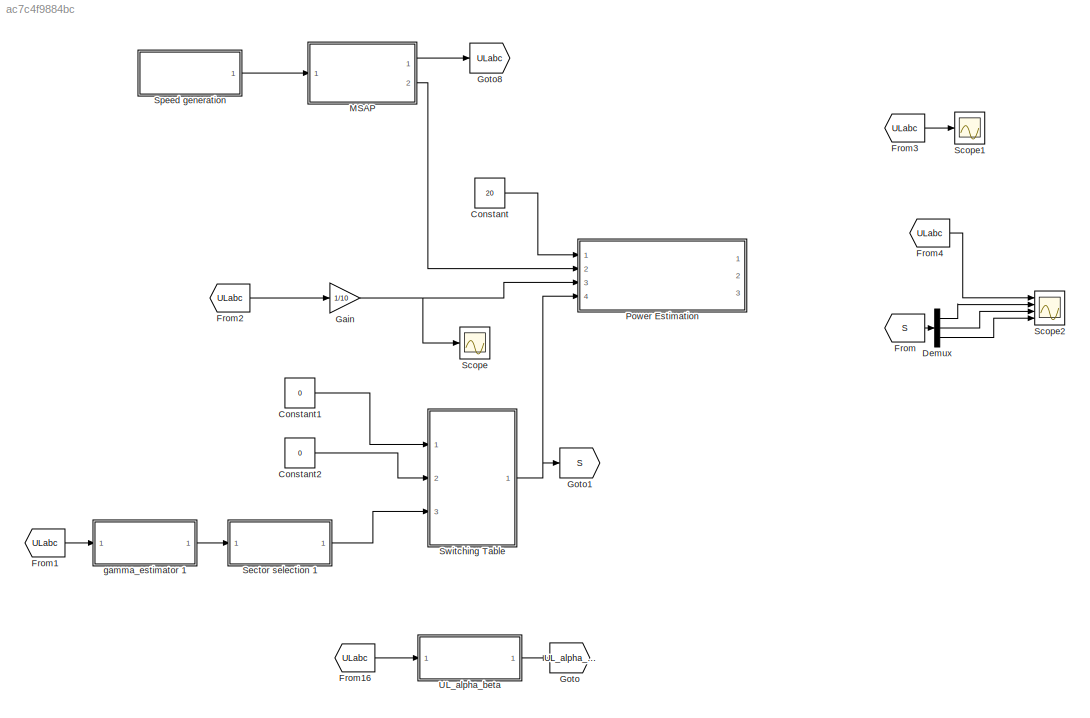
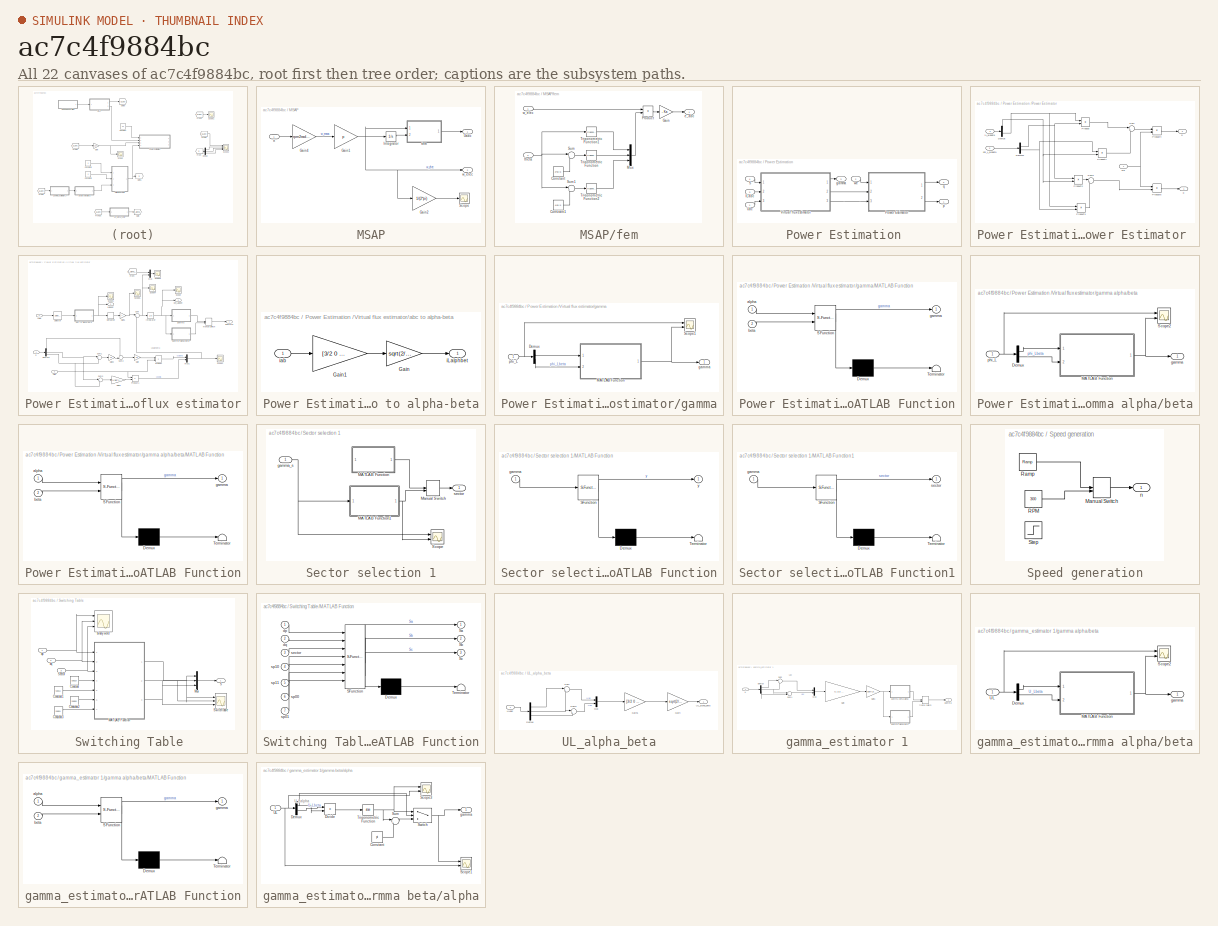
[diagram: thumbnail index - all 22 canvases of the model, root first then tree order]
MODEL slx_ac7c4f9884bc
KIND model
CONFIG AbsTol = auto
CONFIG FixedStep = Ts
CONFIG MaxStep = auto
CONFIG MinStep = auto
CONFIG RelTol = 1e-3
CONFIG SampleTimeConstraint = Unconstrained
CONFIG Solver = ode3
CONFIG SolverMode = Auto
CONFIG SolverName = ode3
CONFIG StartTime = 0.0
CONFIG StopTime = 3
BLOCK [Constant] Constant
  Value = 20
BLOCK [Constant] Constant1
  Value = 0
BLOCK [Constant] Constant2
  Value = 0
BLOCK [Demux] Demux
  DisplayOption = bar
  Outputs = 3
  Ports = [1, 3]
BLOCK [From] From
  GotoTag = S
  TagVisibility = global
BLOCK [From] From1
  GotoTag = ULabc
  TagVisibility = global
BLOCK [From] From16
  GotoTag = ULabc
  TagVisibility = global
BLOCK [From] From2
  GotoTag = ULabc
  TagVisibility = global
BLOCK [From] From3
  GotoTag = ULabc
  TagVisibility = global
BLOCK [From] From4
  GotoTag = ULabc
  TagVisibility = global
BLOCK [Gain] Gain
  Gain = 1/10
  OutDataTypeStr = Inherit: Inherit via internal rule
  ParamDataTypeStr = Inherit: Inherit via internal rule
  SaturateOnIntegerOverflow = off
BLOCK [Goto] Goto
  GotoTag = UL_alpha_beta
  TagVisibility = global
BLOCK [Goto] Goto1
  GotoTag = S
  TagVisibility = global
BLOCK [Goto] Goto8
  GotoTag = ULabc
  TagVisibility = global
BLOCK [SubSystem] MSAP
  Ports = [1, 2]
  RequestExecContextInheritance = off
BLOCK [Gain] MSAP/Gain1
  Gain = p
  OutDataTypeStr = Inherit: Inherit via internal rule
  ParamDataTypeStr = Inherit: Inherit via internal rule
  SaturateOnIntegerOverflow = off
BLOCK [Gain] MSAP/Gain2
  Gain = 1/(2*pi)
  OutDataTypeStr = Inherit: Inherit via internal rule
  ParamDataTypeStr = Inherit: Inherit via internal rule
  SaturateOnIntegerOverflow = off
BLOCK [Gain] MSAP/Gain4
  Gain = rpm2radps
  OutDataTypeStr = Inherit: Inherit via internal rule
  ParamDataTypeStr = Inherit: Inherit via internal rule
  SaturateOnIntegerOverflow = off
BLOCK [Integrator] MSAP/Integrator
  Ports = [1, 1]
BLOCK [Scope] MSAP/Scope
  Floating = off
  NumInputPorts = 1
  Ports = [1]
  SaveName = ScopeData9
  YMax = 21
  YMin = 19
BLOCK [Outport] MSAP/Uabc
  IconDisplay = Port number
BLOCK [SubSystem] MSAP/fem
  Ports = [2, 1]
  RequestExecContextInheritance = off
BLOCK [Constant] MSAP/fem/Constant
  Value = 2*pi/3
BLOCK [Constant] MSAP/fem/Constant1
  Value = 4*pi/3
BLOCK [Gain] MSAP/fem/Gain
  Gain = - Ka
  OutDataTypeStr = Inherit: Inherit via internal rule
  ParamDataTypeStr = Inherit: Inherit via internal rule
  SaturateOnIntegerOverflow = off
BLOCK [Mux] MSAP/fem/Mux
  DisplayOption = bar
  Inputs = 3
  Ports = [3, 1]
BLOCK [Product] MSAP/fem/Product
  InputSameDT = off
  OutDataTypeStr = Inherit: Inherit via internal rule
  Ports = [2, 1]
  RndMeth = Floor
  SaturateOnIntegerOverflow = off
BLOCK [Sum] MSAP/fem/Sum
  IconShape = round
  InputSameDT = off
  Inputs = |+-
  OutDataTypeStr = Inherit: Inherit via internal rule
  Ports = [2, 1]
  SaturateOnIntegerOverflow = off
BLOCK [Sum] MSAP/fem/Sum1
  IconShape = round
  InputSameDT = off
  Inputs = |+-
  OutDataTypeStr = Inherit: Inherit via internal rule
  Ports = [2, 1]
  SaturateOnIntegerOverflow = off
BLOCK [Trigonometry] MSAP/fem/Trigonometric Function
  Ports = [1, 1]
BLOCK [Trigonometry] MSAP/fem/Trigonometric Function1
  Ports = [1, 1]
BLOCK [Trigonometry] MSAP/fem/Trigonometric Function2
  Ports = [1, 1]
BLOCK [Outport] MSAP/fem/e_abc
  IconDisplay = Port number
BLOCK [Inport] MSAP/fem/theta
  IconDisplay = Port number
  Port = 2
BLOCK [Inport] MSAP/fem/w_elec
  IconDisplay = Port number
BLOCK [Inport] MSAP/n
  IconDisplay = Port number
BLOCK [Outport] MSAP/w_elec
  IconDisplay = Port number
  Port = 2
BLOCK [SubSystem] Power Estimation 
  Ports = [4, 3]
  RequestExecContextInheritance = off
BLOCK [Inport] Power Estimation /ILabc
  IconDisplay = Port number
  Port = 3
BLOCK [SubSystem] Power Estimation /Power Estimator 
  Ports = [3, 2]
  RequestExecContextInheritance = off
BLOCK [Demux] Power Estimation /Power Estimator /Demux
  DisplayOption = bar
  Outputs = 2
  Ports = [1, 2]
BLOCK [Demux] Power Estimation /Power Estimator /Demux1
  DisplayOption = bar
  Outputs = 2
  Ports = [1, 2]
BLOCK [Product] Power Estimation /Power Estimator /Product
  InputSameDT = off
  OutDataTypeStr = Inherit: Inherit via internal rule
  Ports = [2, 1]
  RndMeth = Floor
  SaturateOnIntegerOverflow = off
BLOCK [Product] Power Estimation /Power Estimator /Product1
  InputSameDT = off
  OutDataTypeStr = Inherit: Inherit via internal rule
  Ports = [2, 1]
  RndMeth = Floor
  SaturateOnIntegerOverflow = off
BLOCK [Product] Power Estimation /Power Estimator /Product2
  InputSameDT = off
  OutDataTypeStr = Inherit: Inherit via internal rule
  Ports = [2, 1]
  RndMeth = Floor
  SaturateOnIntegerOverflow = off
BLOCK [Product] Power Estimation /Power Estimator /Product3
  InputSameDT = off
  OutDataTypeStr = Inherit: Inherit via internal rule
  Ports = [2, 1]
  RndMeth = Floor
  SaturateOnIntegerOverflow = off
BLOCK [Product] Power Estimation /Power Estimator /Product4
  InputSameDT = off
  OutDataTypeStr = Inherit: Inherit via internal rule
  Ports = [2, 1]
  RndMeth = Floor
  SaturateOnIntegerOverflow = off
BLOCK [Product] Power Estimation /Power Estimator /Product5
  InputSameDT = off
  OutDataTypeStr = Inherit: Inherit via internal rule
  Ports = [2, 1]
  RndMeth = Floor
  SaturateOnIntegerOverflow = off
BLOCK [Sum] Power Estimation /Power Estimator /Sum
  IconShape = round
  InputSameDT = off
  Inputs = |+-
  OutDataTypeStr = Inherit: Inherit via internal rule
  Ports = [2, 1]
  SaturateOnIntegerOverflow = off
BLOCK [Sum] Power Estimation /Power Estimator /Sum1
  IconShape = round
  InputSameDT = off
  Inputs = |++
  OutDataTypeStr = Inherit: Inherit via internal rule
  Ports = [2, 1]
  SaturateOnIntegerOverflow = off
BLOCK [Inport] Power Estimation /Power Estimator /iL_alpbeta
  IconDisplay = Port number
  Port = 2
BLOCK [Outport] Power Estimation /Power Estimator /p
  IconDisplay = Port number
  Port = 2
BLOCK [Inport] Power Estimation /Power Estimator /phi_L_alpbeta
  IconDisplay = Port number
  Port = 3
BLOCK [Outport] Power Estimation /Power Estimator /q
  IconDisplay = Port number
BLOCK [Inport] Power Estimation /Power Estimator /we
  IconDisplay = Port number
BLOCK [Inport] Power Estimation /S
  IconDisplay = Port number
  Port = 4
BLOCK [Inport] Power Estimation /Udc
  IconDisplay = Port number
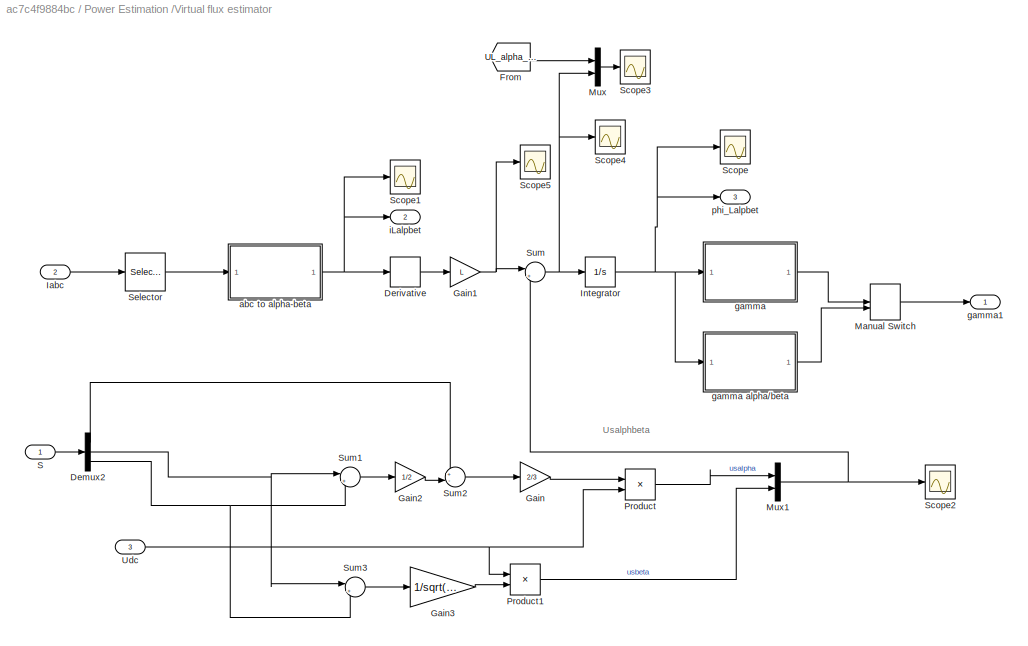
BLOCK [SubSystem] Power Estimation /Virtual flux estimator
  Ports = [3, 3]
  RequestExecContextInheritance = off
BLOCK [Demux] Power Estimation /Virtual flux estimator/Demux2
  DisplayOption = bar
  Outputs = 3
  Ports = [1, 3]
BLOCK [Derivative] Power Estimation /Virtual flux estimator/Derivative
BLOCK [From] Power Estimation /Virtual flux estimator/From
  GotoTag = UL_alpha_beta
  TagVisibility = global
BLOCK [Gain] Power Estimation /Virtual flux estimator/Gain
  Gain = 2/3
  OutDataTypeStr = Inherit: Inherit via internal rule
  ParamDataTypeStr = Inherit: Inherit via internal rule
  SaturateOnIntegerOverflow = off
BLOCK [Gain] Power Estimation /Virtual flux estimator/Gain1
  Gain = L
  OutDataTypeStr = Inherit: Inherit via internal rule
  ParamDataTypeStr = Inherit: Inherit via internal rule
  SaturateOnIntegerOverflow = off
BLOCK [Gain] Power Estimation /Virtual flux estimator/Gain2
  Gain = 1/2
  OutDataTypeStr = Inherit: Inherit via internal rule
  ParamDataTypeStr = Inherit: Inherit via internal rule
  SaturateOnIntegerOverflow = off
BLOCK [Gain] Power Estimation /Virtual flux estimator/Gain3
  Gain = 1/sqrt(3)
  OutDataTypeStr = Inherit: Inherit via internal rule
  ParamDataTypeStr = Inherit: Inherit via internal rule
  SaturateOnIntegerOverflow = off
BLOCK [Inport] Power Estimation /Virtual flux estimator/Iabc
  IconDisplay = Port number
  Port = 2
BLOCK [Integrator] Power Estimation /Virtual flux estimator/Integrator
  Ports = [1, 1]
BLOCK [ManualSwitch] Power Estimation /Virtual flux estimator/Manual Switch
BLOCK [Mux] Power Estimation /Virtual flux estimator/Mux
  DisplayOption = bar
  Inputs = 2
  Ports = [2, 1]
BLOCK [Mux] Power Estimation /Virtual flux estimator/Mux1
  DisplayOption = bar
  Inputs = 2
  Ports = [2, 1]
BLOCK [Product] Power Estimation /Virtual flux estimator/Product
  InputSameDT = off
  OutDataTypeStr = Inherit: Inherit via internal rule
  Ports = [2, 1]
  RndMeth = Floor
  SaturateOnIntegerOverflow = off
BLOCK [Product] Power Estimation /Virtual flux estimator/Product1
  InputSameDT = off
  OutDataTypeStr = Inherit: Inherit via internal rule
  Ports = [2, 1]
  RndMeth = Floor
  SaturateOnIntegerOverflow = off
BLOCK [Inport] Power Estimation /Virtual flux estimator/S
  IconDisplay = Port number
BLOCK [Scope] Power Estimation /Virtual flux estimator/Scope
  Floating = off
  LegendLocations = 0.92118     0.91727    0.058854    0.037539
  LimitDataPoints = off
  NumInputPorts = 1
  Ports = [1]
  ShowLegends = on
  YMax = 0.45
  YMin = -0.45
  ZoomMode = xonly
BLOCK [Scope] Power Estimation /Virtual flux estimator/Scope1
  Floating = off
  LimitDataPoints = off
  NumInputPorts = 1
  Ports = [1]
  SaveName = ScopeData1
  YMax = 450
  YMin = -450
  ZoomMode = xonly
BLOCK [Scope] Power Estimation /Virtual flux estimator/Scope2
  Floating = off
  LimitDataPoints = off
  NumInputPorts = 1
  Ports = [1]
  SaveName = ScopeData4
  ShowLegends = on
  YMax = 8
  YMin = -8
  ZoomMode = xonly
BLOCK [Scope] Power Estimation /Virtual flux estimator/Scope3
  Floating = off
  LimitDataPoints = off
  NumInputPorts = 1
  Ports = [1]
  SaveName = ScopeData11
  ShowLegends = on
  YMax = 40
  YMin = -40
  ZoomMode = xonly
BLOCK [Scope] Power Estimation /Virtual flux estimator/Scope4
  Floating = off
  LegendLocations = 0.9342     0.91727    0.045833    0.037539
  LimitDataPoints = off
  NumInputPorts = 1
  Ports = [1]
  SaveName = ScopeData6
  ShowLegends = on
  YMax = 40
  YMin = -40
  ZoomMode = xonly
BLOCK [Scope] Power Estimation /Virtual flux estimator/Scope5
  Floating = off
  LimitDataPoints = off
  NumInputPorts = 1
  Ports = [1]
  SaveName = ScopeData12
  YMax = 40
  YMin = -40
  ZoomMode = xonly
BLOCK [Selector] Power Estimation /Virtual flux estimator/Selector
  Indices = [1 2]
  InputPortWidth = 3
  Ports = [1, 1]
BLOCK [Sum] Power Estimation /Virtual flux estimator/Sum
  IconShape = round
  InputSameDT = off
  Inputs = |++
  OutDataTypeStr = Inherit: Inherit via internal rule
  Ports = [2, 1]
  SaturateOnIntegerOverflow = off
BLOCK [Sum] Power Estimation /Virtual flux estimator/Sum1
  IconShape = round
  InputSameDT = off
  Inputs = |++
  OutDataTypeStr = Inherit: Inherit via internal rule
  Ports = [2, 1]
  SaturateOnIntegerOverflow = off
BLOCK [Sum] Power Estimation /Virtual flux estimator/Sum2
  IconShape = round
  InputSameDT = off
  Inputs = +-|
  OutDataTypeStr = Inherit: Inherit via internal rule
  Ports = [2, 1]
  SaturateOnIntegerOverflow = off
BLOCK [Sum] Power Estimation /Virtual flux estimator/Sum3
  IconShape = round
  InputSameDT = off
  Inputs = |+-
  OutDataTypeStr = Inherit: Inherit via internal rule
  Ports = [2, 1]
  SaturateOnIntegerOverflow = off
BLOCK [Inport] Power Estimation /Virtual flux estimator/Udc
  IconDisplay = Port number
  Port = 3
BLOCK [SubSystem] Power Estimation /Virtual flux estimator/abc to alpha-beta
  Ports = [1, 1]
  RequestExecContextInheritance = off
BLOCK [Gain] Power Estimation /Virtual flux estimator/abc to alpha-beta/Gain
  Gain = sqrt(2/3)
  OutDataTypeStr = Inherit: Inherit via internal rule
  ParamDataTypeStr = Inherit: Inherit via internal rule
  SaturateOnIntegerOverflow = off
BLOCK [Gain] Power Estimation /Virtual flux estimator/abc to alpha-beta/Gain1
  Gain = [3/2 0 ; sqrt(3)/2 sqrt(3)]
  Multiplication = Matrix(K*u)
  OutDataTypeStr = Inherit: Inherit via internal rule
  ParamDataTypeStr = Inherit: Inherit via internal rule
  SaturateOnIntegerOverflow = off
BLOCK [Outport] Power Estimation /Virtual flux estimator/abc to alpha-beta/iLalphbet
  IconDisplay = Port number
BLOCK [Inport] Power Estimation /Virtual flux estimator/abc to alpha-beta/iab
  IconDisplay = Port number
BLOCK [SubSystem] Power Estimation /Virtual flux estimator/gamma
  Ports = [1, 1]
  RequestExecContextInheritance = off
BLOCK [SubSystem] Power Estimation /Virtual flux estimator/gamma alpha//beta
  Ports = [1, 1]
  RequestExecContextInheritance = off
BLOCK [Demux] Power Estimation /Virtual flux estimator/gamma alpha//beta/Demux
  DisplayOption = bar
  Outputs = 2
  Ports = [1, 2]
BLOCK [SubSystem] Power Estimation /Virtual flux estimator/gamma alpha//beta/MATLAB Function
  ErrorFcn = Stateflow.Translate.translate
  PermitHierarchicalResolution = ExplicitOnly
  Ports = [2, 1]
  RequestExecContextInheritance = off
  SFBlockType = MATLAB Function
  TreatAsAtomicUnit = on
BLOCK [Demux] Power Estimation /Virtual flux estimator/gamma alpha//beta/MATLAB Function/ Demux 
  Outputs = 1
  Ports = [1, 1]
BLOCK [S-Function] Power Estimation /Virtual flux estimator/gamma alpha//beta/MATLAB Function/ SFunction 
  EnableBusSupport = on
  FunctionName = sf_sfun
  PortCounts = [2 2]
  Ports = [2, 2]
  Tag = Stateflow S-Function power_estimation 6
BLOCK [Terminator] Power Estimation /Virtual flux estimator/gamma alpha//beta/MATLAB Function/ Terminator 
BLOCK [Inport] Power Estimation /Virtual flux estimator/gamma alpha//beta/MATLAB Function/alpha
  IconDisplay = Port number
BLOCK [Inport] Power Estimation /Virtual flux estimator/gamma alpha//beta/MATLAB Function/beta
  IconDisplay = Port number
  Port = 2
BLOCK [Outport] Power Estimation /Virtual flux estimator/gamma alpha//beta/MATLAB Function/gamma
  IconDisplay = Port number
BLOCK [Scope] Power Estimation /Virtual flux estimator/gamma alpha//beta/Scope2
  Floating = off
  LimitDataPoints = off
  NumInputPorts = 2
  Ports = [2]
  SaveName = ScopeData15
  YMax = 1.75~300
  YMin = -1.75~-500
  ZoomMode = xonly
BLOCK [Outport] Power Estimation /Virtual flux estimator/gamma alpha//beta/gamma
  IconDisplay = Port number
BLOCK [Inport] Power Estimation /Virtual flux estimator/gamma alpha//beta/phi_L
  IconDisplay = Port number
BLOCK [Demux] Power Estimation /Virtual flux estimator/gamma/Demux
  DisplayOption = bar
  Outputs = 2
  Ports = [1, 2]
BLOCK [SubSystem] Power Estimation /Virtual flux estimator/gamma/MATLAB Function
  ErrorFcn = Stateflow.Translate.translate
  PermitHierarchicalResolution = ExplicitOnly
  Ports = [2, 1]
  RequestExecContextInheritance = off
  SFBlockType = MATLAB Function
  TreatAsAtomicUnit = on
BLOCK [Demux] Power Estimation /Virtual flux estimator/gamma/MATLAB Function/ Demux 
  Outputs = 1
  Ports = [1, 1]
BLOCK [S-Function] Power Estimation /Virtual flux estimator/gamma/MATLAB Function/ SFunction 
  EnableBusSupport = on
  FunctionName = sf_sfun
  PortCounts = [2 2]
  Ports = [2, 2]
  Tag = Stateflow S-Function power_estimation 3
BLOCK [Terminator] Power Estimation /Virtual flux estimator/gamma/MATLAB Function/ Terminator 
BLOCK [Inport] Power Estimation /Virtual flux estimator/gamma/MATLAB Function/alpha
  IconDisplay = Port number
BLOCK [Inport] Power Estimation /Virtual flux estimator/gamma/MATLAB Function/beta
  IconDisplay = Port number
  Port = 2
BLOCK [Outport] Power Estimation /Virtual flux estimator/gamma/MATLAB Function/gamma
  IconDisplay = Port number
BLOCK [Scope] Power Estimation /Virtual flux estimator/gamma/Scope1
  Floating = off
  LegendLocations = 0.9316     0.91727    0.048437    0.037539\n0.90399     0.45812    0.076042    0.021203
  LimitDataPoints = off
  NumInputPorts = 2
  Ports = [2]
  SaveName = ScopeData3
  ShowLegends = on
  YMax = 0.3~6.5
  YMin = -0.3~0
  ZoomMode = xonly
BLOCK [Outport] Power Estimation /Virtual flux estimator/gamma/gamma
  IconDisplay = Port number
BLOCK [Inport] Power Estimation /Virtual flux estimator/gamma/phi_L
  IconDisplay = Port number
BLOCK [Outport] Power Estimation /Virtual flux estimator/gamma1
  IconDisplay = Port number
BLOCK [Outport] Power Estimation /Virtual flux estimator/iLalpbet
  IconDisplay = Port number
  Port = 2
BLOCK [Outport] Power Estimation /Virtual flux estimator/phi_Lalpbet
  IconDisplay = Port number
  Port = 3
BLOCK [Outport] Power Estimation /gamma
  IconDisplay = Port number
  Port = 3
BLOCK [Outport] Power Estimation /p
  IconDisplay = Port number
BLOCK [Outport] Power Estimation /q
  IconDisplay = Port number
  Port = 2
BLOCK [Inport] Power Estimation /we
  IconDisplay = Port number
  Port = 2
BLOCK [Scope] Scope
  Floating = off
  NumInputPorts = 1
  Ports = [1]
  SaveName = ScopeData5
BLOCK [Scope] Scope1
  Floating = off
  LimitDataPoints = off
  NumInputPorts = 1
  Ports = [1]
  SaveName = ScopeData8
  ZoomMode = xonly
BLOCK [Scope] Scope2
  Floating = off
  LimitDataPoints = off
  NumInputPorts = 4
  Ports = [4]
  SaveName = ScopeData10
  YMax = 5~1.5~1.5~1.5
  YMin = -5~-0.5~-1.5~-1.5
  ZoomMode = xonly
BLOCK [SubSystem] Sector selection 1
  Ports = [1, 1]
  RequestExecContextInheritance = off
BLOCK [SubSystem] Sector selection 1/MATLAB Function
  ErrorFcn = Stateflow.Translate.translate
  PermitHierarchicalResolution = ExplicitOnly
  Ports = [1, 1]
  RequestExecContextInheritance = off
  SFBlockType = MATLAB Function
  TreatAsAtomicUnit = on
BLOCK [Demux] Sector selection 1/MATLAB Function/ Demux 
  Outputs = 1
  Ports = [1, 1]
BLOCK [S-Function] Sector selection 1/MATLAB Function/ SFunction 
  EnableBusSupport = on
  FunctionName = sf_sfun
  PortCounts = [1 2]
  Ports = [1, 2]
  Tag = Stateflow S-Function power_estimation 7
BLOCK [Terminator] Sector selection 1/MATLAB Function/ Terminator 
BLOCK [Inport] Sector selection 1/MATLAB Function/gamma
  IconDisplay = Port number
BLOCK [Outport] Sector selection 1/MATLAB Function/y
  IconDisplay = Port number
BLOCK [SubSystem] Sector selection 1/MATLAB Function1
  ErrorFcn = Stateflow.Translate.translate
  PermitHierarchicalResolution = ExplicitOnly
  Ports = [1, 1]
  RequestExecContextInheritance = off
  SFBlockType = MATLAB Function
  TreatAsAtomicUnit = on
BLOCK [Demux] Sector selection 1/MATLAB Function1/ Demux 
  Outputs = 1
  Ports = [1, 1]
BLOCK [S-Function] Sector selection 1/MATLAB Function1/ SFunction 
  EnableBusSupport = on
  FunctionName = sf_sfun
  PortCounts = [1 2]
  Ports = [1, 2]
  Tag = Stateflow S-Function power_estimation 8
BLOCK [Terminator] Sector selection 1/MATLAB Function1/ Terminator 
BLOCK [Inport] Sector selection 1/MATLAB Function1/gamma
  IconDisplay = Port number
BLOCK [Outport] Sector selection 1/MATLAB Function1/sector
  IconDisplay = Port number
BLOCK [ManualSwitch] Sector selection 1/Manual Switch
  CurrentSetting = 0
BLOCK [Scope] Sector selection 1/Scope
  Floating = off
  NumInputPorts = 2
  Ports = [2]
  SaveName = ScopeData16
  YMax = 6.5~5
  YMin = 0~-5
  ZoomMode = xonly
BLOCK [Inport] Sector selection 1/gamma_s
  IconDisplay = Port number
BLOCK [Outport] Sector selection 1/sector 
  IconDisplay = Port number
BLOCK [SubSystem] Speed generation
  Ports = [0, 1]
  RequestExecContextInheritance = off
BLOCK [ManualSwitch] Speed generation/Manual Switch
  CurrentSetting = 0
BLOCK [Constant] Speed generation/RPM
  Value = 300
BLOCK [Reference] Speed generation/Ramp  REF=simulink/Sources/Ramp
  Ports = [0, 1]
  SourceBlock = simulink/Sources/Ramp
  SourceType = Ramp
  VectorParams1D = on
  X0 = 100
  slope = 50
  start = 0
BLOCK [Step] Speed generation/Step
  After = 0
  SampleTime = 0
  Time = 1.5
BLOCK [Outport] Speed generation/n
  IconDisplay = Port number
BLOCK [SubSystem] Switching Table 
  Ports = [3, 1]
  RequestExecContextInheritance = off
BLOCK [Constant] Switching Table /Constant
  Value = spq10
BLOCK [Constant] Switching Table /Constant1
  Value = spq11
BLOCK [Constant] Switching Table /Constant2
  Value = spq00
BLOCK [Constant] Switching Table /Constant3
  Value = spq01
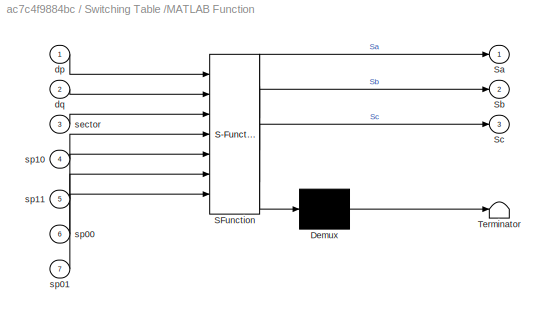
BLOCK [SubSystem] Switching Table /MATLAB Function
  ErrorFcn = Stateflow.Translate.translate
  PermitHierarchicalResolution = ExplicitOnly
  Ports = [7, 3]
  RequestExecContextInheritance = off
  SFBlockType = MATLAB Function
  TreatAsAtomicUnit = on
BLOCK [Demux] Switching Table /MATLAB Function/ Demux 
  Outputs = 1
  Ports = [1, 1]
BLOCK [S-Function] Switching Table /MATLAB Function/ SFunction 
  EnableBusSupport = on
  FunctionName = sf_sfun
  PortCounts = [7 4]
  Ports = [7, 4]
  Tag = Stateflow S-Function power_estimation 1
BLOCK [Terminator] Switching Table /MATLAB Function/ Terminator 
BLOCK [Outport] Switching Table /MATLAB Function/Sa
  IconDisplay = Port number
BLOCK [Outport] Switching Table /MATLAB Function/Sb
  IconDisplay = Port number
  Port = 2
BLOCK [Outport] Switching Table /MATLAB Function/Sc
  IconDisplay = Port number
  Port = 3
BLOCK [Inport] Switching Table /MATLAB Function/dp
  IconDisplay = Port number
BLOCK [Inport] Switching Table /MATLAB Function/dq
  IconDisplay = Port number
  Port = 2
BLOCK [Inport] Switching Table /MATLAB Function/sector
  IconDisplay = Port number
  Port = 3
BLOCK [Inport] Switching Table /MATLAB Function/sp00
  IconDisplay = Port number
  Port = 6
BLOCK [Inport] Switching Table /MATLAB Function/sp01
  IconDisplay = Port number
  Port = 7
BLOCK [Inport] Switching Table /MATLAB Function/sp10
  IconDisplay = Port number
  Port = 4
BLOCK [Inport] Switching Table /MATLAB Function/sp11
  IconDisplay = Port number
  Port = 5
BLOCK [Mux] Switching Table /Mux
  DisplayOption = bar
  Inputs = 3
  Ports = [3, 1]
BLOCK [Outport] Switching Table /S
  IconDisplay = Port number
BLOCK [Inport] Switching Table /Sector 
  IconDisplay = Port number
  Port = 3
BLOCK [Scope] Switching Table /Switch table
  DataFormat = StructureWithTime
  Floating = off
  LegendLocations = 0.9441     0.93361    0.035937    0.021203\n 0.9441     0.61661    0.035937    0.021203\n0.90972     0.30066    0.070312    0.021203
  LimitDataPoints = off
  NumInputPorts = 3
  Ports = [3]
  SaveName = binary_word
  ShowLegends = on
  TimeRange = 2
  YMax = 5~5~5
  YMin = 3~-5~-5
  ZoomMode = xonly
BLOCK [Scope] Switching Table /binary word
  Floating = off
  LimitDataPoints = off
  NumInputPorts = 3
  Ports = [3]
  SaveName = ScopeData7
  YMax = 5~5~5
  YMin = -5~-5~-5
  ZoomMode = xonly
BLOCK [Inport] Switching Table /dp
  IconDisplay = Port number
BLOCK [Inport] Switching Table /dq
  IconDisplay = Port number
  Port = 2
BLOCK [SubSystem] UL_alpha_beta
  Ports = [1, 1]
  RequestExecContextInheritance = off
BLOCK [Demux] UL_alpha_beta/Demux
  DisplayOption = bar
  Outputs = 3
  Ports = [1, 3]
BLOCK [Gain] UL_alpha_beta/Gain
  Gain = sqrt(2/3)
  OutDataTypeStr = Inherit: Inherit via internal rule
  ParamDataTypeStr = Inherit: Inherit via internal rule
  SaturateOnIntegerOverflow = off
BLOCK [Gain] UL_alpha_beta/Gain1
  Gain = [3/2 0 ; sqrt(3)/2 sqrt(3)]
  Multiplication = Matrix(K*u)
  OutDataTypeStr = Inherit: Inherit via internal rule
  ParamDataTypeStr = Inherit: Inherit via internal rule
  SaturateOnIntegerOverflow = off
BLOCK [Mux] UL_alpha_beta/Mux
  DisplayOption = bar
  Inputs = 2
  Ports = [2, 1]
BLOCK [Sum] UL_alpha_beta/Sum
  IconShape = round
  InputSameDT = off
  Inputs = |+-
  OutDataTypeStr = Inherit: Inherit via internal rule
  Ports = [2, 1]
  SaturateOnIntegerOverflow = off
BLOCK [Sum] UL_alpha_beta/Sum1
  IconShape = round
  InputSameDT = off
  Inputs = |+-
  OutDataTypeStr = Inherit: Inherit via internal rule
  Ports = [2, 1]
  SaturateOnIntegerOverflow = off
BLOCK [Outport] UL_alpha_beta/UL_alpha_beta
  IconDisplay = Port number
BLOCK [Inport] UL_alpha_beta/ULabc
  IconDisplay = Port number
BLOCK [SubSystem] gamma_estimator 1
  Ports = [1, 1]
  RequestExecContextInheritance = off
BLOCK [Demux] gamma_estimator 1/Demux
  DisplayOption = bar
  Outputs = 3
  Ports = [1, 3]
BLOCK [Gain] gamma_estimator 1/Gain
  Gain = [1 1/2 ; 0 sqrt(3)/2]
  Multiplication = Matrix(K*u)
  OutDataTypeStr = Inherit: Inherit via internal rule
  ParamDataTypeStr = Inherit: Inherit via internal rule
  SaturateOnIntegerOverflow = off
BLOCK [Gain] gamma_estimator 1/Gain1
  Gain = sqrt(2/3)
  OutDataTypeStr = Inherit: Inherit via internal rule
  ParamDataTypeStr = Inherit: Inherit via internal rule
  SaturateOnIntegerOverflow = off
BLOCK [Mux] gamma_estimator 1/Mux
  DisplayOption = bar
  Inputs = 2
  Ports = [2, 1]
BLOCK [Sum] gamma_estimator 1/Sum
  IconShape = round
  InputSameDT = off
  Inputs = |+-
  OutDataTypeStr = Inherit: Inherit via internal rule
  Ports = [2, 1]
  SaturateOnIntegerOverflow = off
BLOCK [Sum] gamma_estimator 1/Sum1
  IconShape = round
  InputSameDT = off
  Inputs = |+-
  OutDataTypeStr = Inherit: Inherit via internal rule
  Ports = [2, 1]
  SaturateOnIntegerOverflow = off
BLOCK [Inport] gamma_estimator 1/U
  IconDisplay = Port number
BLOCK [ManualSwitch] gamma_estimator 1/frame switch
  CurrentSetting = 0
BLOCK [Outport] gamma_estimator 1/gamma
  IconDisplay = Port number
BLOCK [SubSystem] gamma_estimator 1/gamma alpha//beta
  Ports = [1, 1]
  RequestExecContextInheritance = off
BLOCK [Demux] gamma_estimator 1/gamma alpha//beta/Demux
  DisplayOption = bar
  Outputs = 2
  Ports = [1, 2]
BLOCK [SubSystem] gamma_estimator 1/gamma alpha//beta/MATLAB Function
  ErrorFcn = Stateflow.Translate.translate
  PermitHierarchicalResolution = ExplicitOnly
  Ports = [2, 1]
  RequestExecContextInheritance = off
  SFBlockType = MATLAB Function
  TreatAsAtomicUnit = on
BLOCK [Demux] gamma_estimator 1/gamma alpha//beta/MATLAB Function/ Demux 
  Outputs = 1
  Ports = [1, 1]
BLOCK [S-Function] gamma_estimator 1/gamma alpha//beta/MATLAB Function/ SFunction 
  EnableBusSupport = on
  FunctionName = sf_sfun
  PortCounts = [2 2]
  Ports = [2, 2]
  Tag = Stateflow S-Function power_estimation 9
BLOCK [Terminator] gamma_estimator 1/gamma alpha//beta/MATLAB Function/ Terminator 
BLOCK [Inport] gamma_estimator 1/gamma alpha//beta/MATLAB Function/alpha
  IconDisplay = Port number
BLOCK [Inport] gamma_estimator 1/gamma alpha//beta/MATLAB Function/beta
  IconDisplay = Port number
  Port = 2
BLOCK [Outport] gamma_estimator 1/gamma alpha//beta/MATLAB Function/gamma
  IconDisplay = Port number
BLOCK [Scope] gamma_estimator 1/gamma alpha//beta/Scope2
  Floating = off
  LimitDataPoints = off
  NumInputPorts = 2
  Ports = [2]
  SaveName = ScopeData15
  TimeRange = 10
  YMax = 1.75~300
  YMin = -1.75~-500
  ZoomMode = xonly
BLOCK [Inport] gamma_estimator 1/gamma alpha//beta/UL
  IconDisplay = Port number
BLOCK [Outport] gamma_estimator 1/gamma alpha//beta/gamma
  IconDisplay = Port number
BLOCK [SubSystem] gamma_estimator 1/gamma beta//alpha
  Ports = [1, 1]
  RequestExecContextInheritance = off
BLOCK [Constant] gamma_estimator 1/gamma beta//alpha/Constant
  Value = pi
BLOCK [Demux] gamma_estimator 1/gamma beta//alpha/Demux
  DisplayOption = bar
  Outputs = 2
  Ports = [1, 2]
BLOCK [Product] gamma_estimator 1/gamma beta//alpha/Divide
  InputSameDT = off
  Inputs = */
  OutDataTypeStr = Inherit: Inherit via internal rule
  Ports = [2, 1]
  RndMeth = Floor
  SaturateOnIntegerOverflow = off
BLOCK [Scope] gamma_estimator 1/gamma beta//alpha/Scope1
  Floating = off
  LimitDataPoints = off
  NumInputPorts = 2
  Ports = [2]
  SaveName = ScopeData3
  ShowLegends = on
  YMax = 5~2
  YMin = -2~-1.25
  ZoomMode = xonly
BLOCK [Scope] gamma_estimator 1/gamma beta//alpha/Scope3
  Floating = off
  LimitDataPoints = off
  NumInputPorts = 2
  Ports = [2]
  SaveName = ScopeData2
  YMax = 1.75~300
  YMin = -1.75~-500
  ZoomMode = xonly
BLOCK [Sum] gamma_estimator 1/gamma beta//alpha/Sum
  IconShape = round
  InputSameDT = off
  Inputs = |++
  OutDataTypeStr = Inherit: Inherit via internal rule
  Ports = [2, 1]
  SaturateOnIntegerOverflow = off
BLOCK [Switch] gamma_estimator 1/gamma beta//alpha/Switch
  Criteria = u2 > Threshold
  InputSameDT = off
  SaturateOnIntegerOverflow = off
BLOCK [Trigonometry] gamma_estimator 1/gamma beta//alpha/Trigonometric Function
  Operator = atan
  Ports = [1, 1]
BLOCK [Inport] gamma_estimator 1/gamma beta//alpha/UL
  IconDisplay = Port number
BLOCK [Outport] gamma_estimator 1/gamma beta//alpha/gamma
  IconDisplay = Port number
ANNOTATION Power Estimation /Virtual flux estimator: Usalphbeta
ANNOTATION gamma_estimator 1: Uab
ANNOTATION gamma_estimator 1/gamma beta//alpha: U_Lalpha
LINE Constant1:1 -> Switching Table :1
LINE Constant2:1 -> Switching Table :2
LINE Constant:1 -> Power Estimation :1
LINE Demux:1 -> Scope2:2
LINE Demux:2 -> Scope2:3
LINE Demux:3 -> Scope2:4
LINE From16:1 -> UL_alpha_beta:1
LINE From1:1 -> gamma_estimator 1:1
LINE From2:1 -> Gain:1
LINE From3:1 -> Scope1:1
LINE From4:1 -> Scope2:1
LINE From:1 -> Demux:1
NET Gain:1 -> Power Estimation :3, Scope:1
NET MSAP/Gain1:1 -> MSAP/Gain2:1, MSAP/Integrator:1, MSAP/fem:1, MSAP/w_elec:1
LINE MSAP/Gain2:1 -> MSAP/Scope:1
LINE MSAP/Gain4:1 -> MSAP/Gain1:1
LINE MSAP/Integrator:1 -> MSAP/fem:2
LINE MSAP/fem/Constant1:1 -> MSAP/fem/Sum1:2
LINE MSAP/fem/Constant:1 -> MSAP/fem/Sum:2
LINE MSAP/fem/Gain:1 -> MSAP/fem/e_abc:1
LINE MSAP/fem/Mux:1 -> MSAP/fem/Product:2
LINE MSAP/fem/Product:1 -> MSAP/fem/Gain:1
LINE MSAP/fem/Sum1:1 -> MSAP/fem/Trigonometric Function2:1
LINE MSAP/fem/Sum:1 -> MSAP/fem/Trigonometric Function:1
LINE MSAP/fem/Trigonometric Function1:1 -> MSAP/fem/Mux:1
LINE MSAP/fem/Trigonometric Function2:1 -> MSAP/fem/Mux:3
LINE MSAP/fem/Trigonometric Function:1 -> MSAP/fem/Mux:2
NET MSAP/fem/theta:1 -> MSAP/fem/Sum1:1, MSAP/fem/Sum:1, MSAP/fem/Trigonometric Function1:1
LINE MSAP/fem/w_elec:1 -> MSAP/fem/Product:1
LINE MSAP/fem:1 -> MSAP/Uabc:1
LINE MSAP/n:1 -> MSAP/Gain4:1
LINE MSAP:1 -> Goto8:1
LINE MSAP:2 -> Power Estimation :2
LINE Power Estimation /ILabc:1 -> Power Estimation /Virtual flux estimator:2
NET Power Estimation /Power Estimator /Demux1:1 -> Power Estimation /Power Estimator /Product2:1, Power Estimation /Power Estimator /Product:2
NET Power Estimation /Power Estimator /Demux1:2 -> Power Estimation /Power Estimator /Product1:1, Power Estimation /Power Estimator /Product3:2
NET Power Estimation /Power Estimator /Demux:1 -> Power Estimation /Power Estimator /Product1:2, Power Estimation /Power Estimator /Product2:2
NET Power Estimation /Power Estimator /Demux:2 -> Power Estimation /Power Estimator /Product3:1, Power Estimation /Power Estimator /Product:1
LINE Power Estimation /Power Estimator /Product1:1 -> Power Estimation /Power Estimator /Sum:2
LINE Power Estimation /Power Estimator /Product2:1 -> Power Estimation /Power Estimator /Sum1:1
LINE Power Estimation /Power Estimator /Product3:1 -> Power Estimation /Power Estimator /Sum1:2
LINE Power Estimation /Power Estimator /Product4:1 -> Power Estimation /Power Estimator /p:1
LINE Power Estimation /Power Estimator /Product5:1 -> Power Estimation /Power Estimator /q:1
LINE Power Estimation /Power Estimator /Product:1 -> Power Estimation /Power Estimator /Sum:1
LINE Power Estimation /Power Estimator /Sum1:1 -> Power Estimation /Power Estimator /Product5:2
LINE Power Estimation /Power Estimator /Sum:1 -> Power Estimation /Power Estimator /Product4:1
LINE Power Estimation /Power Estimator /iL_alpbeta:1 -> Power Estimation /Power Estimator /Demux:1
LINE Power Estimation /Power Estimator /phi_L_alpbeta:1 -> Power Estimation /Power Estimator /Demux1:1
NET Power Estimation /Power Estimator /we:1 -> Power Estimation /Power Estimator /Product4:2, Power Estimation /Power Estimator /Product5:1
LINE Power Estimation /Power Estimator :1 -> Power Estimation /q:1
LINE Power Estimation /Power Estimator :2 -> Power Estimation /p:1
LINE Power Estimation /S:1 -> Power Estimation /Virtual flux estimator:1
LINE Power Estimation /Udc:1 -> Power Estimation /Virtual flux estimator:3
LINE Power Estimation /Virtual flux estimator/Demux2:1 -> Power Estimation /Virtual flux estimator/Sum2:1
NET Power Estimation /Virtual flux estimator/Demux2:2 -> Power Estimation /Virtual flux estimator/Sum1:1, Power Estimation /Virtual flux estimator/Sum3:1
NET Power Estimation /Virtual flux estimator/Demux2:3 -> Power Estimation /Virtual flux estimator/Sum1:2, Power Estimation /Virtual flux estimator/Sum3:2
LINE Power Estimation /Virtual flux estimator/Derivative:1 -> Power Estimation /Virtual flux estimator/Gain1:1
LINE Power Estimation /Virtual flux estimator/From:1 -> Power Estimation /Virtual flux estimator/Mux:1
NET Power Estimation /Virtual flux estimator/Gain1:1 -> Power Estimation /Virtual flux estimator/Scope5:1, Power Estimation /Virtual flux estimator/Sum:1
LINE Power Estimation /Virtual flux estimator/Gain2:1 -> Power Estimation /Virtual flux estimator/Sum2:2
LINE Power Estimation /Virtual flux estimator/Gain3:1 -> Power Estimation /Virtual flux estimator/Product1:2
LINE Power Estimation /Virtual flux estimator/Gain:1 -> Power Estimation /Virtual flux estimator/Product:1
LINE Power Estimation /Virtual flux estimator/Iabc:1 -> Power Estimation /Virtual flux estimator/Selector:1
NET Power Estimation /Virtual flux estimator/Integrator:1 -> Power Estimation /Virtual flux estimator/Scope:1, Power Estimation /Virtual flux estimator/gamma alpha//beta:1, Power Estimation /Virtual flux estimator/gamma:1, Power Estimation /Virtual flux estimator/phi_Lalpbet:1
LINE Power Estimation /Virtual flux estimator/Manual Switch:1 -> Power Estimation /Virtual flux estimator/gamma1:1
NET Power Estimation /Virtual flux estimator/Mux1:1 -> Power Estimation /Virtual flux estimator/Scope2:1, Power Estimation /Virtual flux estimator/Sum:2
LINE Power Estimation /Virtual flux estimator/Mux:1 -> Power Estimation /Virtual flux estimator/Scope3:1
LINE Power Estimation /Virtual flux estimator/Product1:1 -> Power Estimation /Virtual flux estimator/Mux1:2
LINE Power Estimation /Virtual flux estimator/Product:1 -> Power Estimation /Virtual flux estimator/Mux1:1
LINE Power Estimation /Virtual flux estimator/S:1 -> Power Estimation /Virtual flux estimator/Demux2:1
LINE Power Estimation /Virtual flux estimator/Selector:1 -> Power Estimation /Virtual flux estimator/abc to alpha-beta:1
LINE Power Estimation /Virtual flux estimator/Sum1:1 -> Power Estimation /Virtual flux estimator/Gain2:1
LINE Power Estimation /Virtual flux estimator/Sum2:1 -> Power Estimation /Virtual flux estimator/Gain:1
LINE Power Estimation /Virtual flux estimator/Sum3:1 -> Power Estimation /Virtual flux estimator/Gain3:1
NET Power Estimation /Virtual flux estimator/Sum:1 -> Power Estimation /Virtual flux estimator/Integrator:1, Power Estimation /Virtual flux estimator/Mux:2, Power Estimation /Virtual flux estimator/Scope4:1
NET Power Estimation /Virtual flux estimator/Udc:1 -> Power Estimation /Virtual flux estimator/Product1:1, Power Estimation /Virtual flux estimator/Product:2
LINE Power Estimation /Virtual flux estimator/abc to alpha-beta/Gain1:1 -> Power Estimation /Virtual flux estimator/abc to alpha-beta/Gain:1
LINE Power Estimation /Virtual flux estimator/abc to alpha-beta/Gain:1 -> Power Estimation /Virtual flux estimator/abc to alpha-beta/iLalphbet:1
LINE Power Estimation /Virtual flux estimator/abc to alpha-beta/iab:1 -> Power Estimation /Virtual flux estimator/abc to alpha-beta/Gain1:1
NET Power Estimation /Virtual flux estimator/abc to alpha-beta:1 -> Power Estimation /Virtual flux estimator/Derivative:1, Power Estimation /Virtual flux estimator/Scope1:1, Power Estimation /Virtual flux estimator/iLalpbet:1
LINE Power Estimation /Virtual flux estimator/gamma alpha//beta/Demux:1 -> Power Estimation /Virtual flux estimator/gamma alpha//beta/MATLAB Function:1
LINE Power Estimation /Virtual flux estimator/gamma alpha//beta/Demux:2 -> Power Estimation /Virtual flux estimator/gamma alpha//beta/MATLAB Function:2
NET Power Estimation /Virtual flux estimator/gamma alpha//beta/MATLAB Function:1 -> Power Estimation /Virtual flux estimator/gamma alpha//beta/Scope2:2, Power Estimation /Virtual flux estimator/gamma alpha//beta/gamma:1
NET Power Estimation /Virtual flux estimator/gamma alpha//beta/phi_L:1 -> Power Estimation /Virtual flux estimator/gamma alpha//beta/Demux:1, Power Estimation /Virtual flux estimator/gamma alpha//beta/Scope2:1
LINE Power Estimation /Virtual flux estimator/gamma alpha//beta:1 -> Power Estimation /Virtual flux estimator/Manual Switch:2
LINE Power Estimation /Virtual flux estimator/gamma/Demux:1 -> Power Estimation /Virtual flux estimator/gamma/MATLAB Function:1
LINE Power Estimation /Virtual flux estimator/gamma/Demux:2 -> Power Estimation /Virtual flux estimator/gamma/MATLAB Function:2
NET Power Estimation /Virtual flux estimator/gamma/MATLAB Function:1 -> Power Estimation /Virtual flux estimator/gamma/Scope1:2, Power Estimation /Virtual flux estimator/gamma/gamma:1
NET Power Estimation /Virtual flux estimator/gamma/phi_L:1 -> Power Estimation /Virtual flux estimator/gamma/Demux:1, Power Estimation /Virtual flux estimator/gamma/Scope1:1
LINE Power Estimation /Virtual flux estimator/gamma:1 -> Power Estimation /Virtual flux estimator/Manual Switch:1
LINE Power Estimation /Virtual flux estimator:1 -> Power Estimation /gamma:1
LINE Power Estimation /Virtual flux estimator:2 -> Power Estimation /Power Estimator :2
LINE Power Estimation /Virtual flux estimator:3 -> Power Estimation /Power Estimator :3
LINE Power Estimation /we:1 -> Power Estimation /Power Estimator :1
NET Sector selection 1/MATLAB Function1:1 -> Sector selection 1/Manual Switch:2, Sector selection 1/Scope:2
LINE Sector selection 1/MATLAB Function:1 -> Sector selection 1/Manual Switch:1
LINE Sector selection 1/Manual Switch:1 -> Sector selection 1/sector :1
NET Sector selection 1/gamma_s:1 -> Sector selection 1/MATLAB Function1:1, Sector selection 1/Scope:1
LINE Sector selection 1:1 -> Switching Table :3
LINE Speed generation/Manual Switch:1 -> Speed generation/n:1
LINE Speed generation/RPM:1 -> Speed generation/Manual Switch:2
LINE Speed generation/Ramp:1 -> Speed generation/Manual Switch:1
LINE Speed generation:1 -> MSAP:1
LINE Switching Table /Constant1:1 -> Switching Table /MATLAB Function:5
LINE Switching Table /Constant2:1 -> Switching Table /MATLAB Function:6
LINE Switching Table /Constant3:1 -> Switching Table /MATLAB Function:7
LINE Switching Table /Constant:1 -> Switching Table /MATLAB Function:4
NET Switching Table /MATLAB Function:1 -> Switching Table /Mux:1, Switching Table /Switch table:1
NET Switching Table /MATLAB Function:2 -> Switching Table /Mux:2, Switching Table /Switch table:2
NET Switching Table /MATLAB Function:3 -> Switching Table /Mux:3, Switching Table /Switch table:3
LINE Switching Table /Mux:1 -> Switching Table /S:1
NET Switching Table /Sector :1 -> Switching Table /MATLAB Function:3, Switching Table /binary word:3
NET Switching Table /dp:1 -> Switching Table /MATLAB Function:1, Switching Table /binary word:1
NET Switching Table /dq:1 -> Switching Table /MATLAB Function:2, Switching Table /binary word:2
NET Switching Table :1 -> Goto1:1, Power Estimation :4
LINE UL_alpha_beta/Demux:1 -> UL_alpha_beta/Sum:1
NET UL_alpha_beta/Demux:2 -> UL_alpha_beta/Sum1:1, UL_alpha_beta/Sum:2
LINE UL_alpha_beta/Demux:3 -> UL_alpha_beta/Sum1:2
LINE UL_alpha_beta/Gain1:1 -> UL_alpha_beta/Gain:1
LINE UL_alpha_beta/Gain:1 -> UL_alpha_beta/UL_alpha_beta:1
LINE UL_alpha_beta/Mux:1 -> UL_alpha_beta/Gain1:1
LINE UL_alpha_beta/Sum1:1 -> UL_alpha_beta/Mux:2
LINE UL_alpha_beta/Sum:1 -> UL_alpha_beta/Mux:1
LINE UL_alpha_beta/ULabc:1 -> UL_alpha_beta/Demux:1
LINE UL_alpha_beta:1 -> Goto:1
LINE gamma_estimator 1/Demux:1 -> gamma_estimator 1/Sum:1
NET gamma_estimator 1/Demux:2 -> gamma_estimator 1/Sum1:1, gamma_estimator 1/Sum:2
LINE gamma_estimator 1/Demux:3 -> gamma_estimator 1/Sum1:2
NET gamma_estimator 1/Gain1:1 -> gamma_estimator 1/gamma alpha//beta:1, gamma_estimator 1/gamma beta//alpha:1
LINE gamma_estimator 1/Gain:1 -> gamma_estimator 1/Gain1:1
LINE gamma_estimator 1/Mux:1 -> gamma_estimator 1/Gain:1
LINE gamma_estimator 1/Sum1:1 -> gamma_estimator 1/Mux:2
LINE gamma_estimator 1/Sum:1 -> gamma_estimator 1/Mux:1
LINE gamma_estimator 1/U:1 -> gamma_estimator 1/Demux:1
LINE gamma_estimator 1/frame switch:1 -> gamma_estimator 1/gamma:1
LINE gamma_estimator 1/gamma alpha//beta/Demux:1 -> gamma_estimator 1/gamma alpha//beta/MATLAB Function:1
LINE gamma_estimator 1/gamma alpha//beta/Demux:2 -> gamma_estimator 1/gamma alpha//beta/MATLAB Function:2
NET gamma_estimator 1/gamma alpha//beta/MATLAB Function:1 -> gamma_estimator 1/gamma alpha//beta/Scope2:2, gamma_estimator 1/gamma alpha//beta/gamma:1
NET gamma_estimator 1/gamma alpha//beta/UL:1 -> gamma_estimator 1/gamma alpha//beta/Demux:1, gamma_estimator 1/gamma alpha//beta/Scope2:1
LINE gamma_estimator 1/gamma alpha//beta:1 -> gamma_estimator 1/frame switch:2
LINE gamma_estimator 1/gamma beta//alpha/Constant:1 -> gamma_estimator 1/gamma beta//alpha/Sum:2
NET gamma_estimator 1/gamma beta//alpha/Demux:1 -> gamma_estimator 1/gamma beta//alpha/Divide:2, gamma_estimator 1/gamma beta//alpha/Switch:2
LINE gamma_estimator 1/gamma beta//alpha/Demux:2 -> gamma_estimator 1/gamma beta//alpha/Divide:1
LINE gamma_estimator 1/gamma beta//alpha/Divide:1 -> gamma_estimator 1/gamma beta//alpha/Trigonometric Function:1
LINE gamma_estimator 1/gamma beta//alpha/Sum:1 -> gamma_estimator 1/gamma beta//alpha/Switch:3
NET gamma_estimator 1/gamma beta//alpha/Switch:1 -> gamma_estimator 1/gamma beta//alpha/Scope1:1, gamma_estimator 1/gamma beta//alpha/gamma:1
NET gamma_estimator 1/gamma beta//alpha/Trigonometric Function:1 -> gamma_estimator 1/gamma beta//alpha/Scope3:1, gamma_estimator 1/gamma beta//alpha/Sum:1, gamma_estimator 1/gamma beta//alpha/Switch:1
NET gamma_estimator 1/gamma beta//alpha/UL:1 -> gamma_estimator 1/gamma beta//alpha/Demux:1, gamma_estimator 1/gamma beta//alpha/Scope1:2, gamma_estimator 1/gamma beta//alpha/Scope3:2
LINE gamma_estimator 1/gamma beta//alpha:1 -> gamma_estimator 1/frame switch:1
LINE gamma_estimator 1:1 -> Sector selection 1:1
note: NET lines group one-source signal fan-out (src -> all destinations, sorted); 1:1 wires keep LINE
CHART Switching Table
/MATLAB Function states=1 transitions=1
  STATE_LABEL 'eML_blk_kernel()'
  STATE_LABEL "SCRIPT:\nfunction [Sa,Sb,Sc] = switch_selector(dp,dq,sector,sp10,sp11,sp00,sp01)\n%#codegen\n% global sp10 sp11 sp00 sp01\n% \n% sp10= load('sp10.mat') ; \n% sp11=load('sp11.mat'); \n% sp00=load('sp00.mat');\n% sp01 =load('sp01.mat'); \n%persistent Sa Sb Sc  \nSa= 0 ; \nSb = 0 ; \nSc = 0 ; \n\nswitch dp\n    case 1 \n        switch dq\n            case 0 \n                Sa=sp10(sector,1) ; \n                Sb=sp1...<+513ch>"
CHART Power Estimation
/Virtual flux estimator/gamma/MATLAB Function states=1 transitions=1
  STATE_LABEL 'eML_blk_kernel()'
  STATE_LABEL 'SCRIPT:\nfunction gamma = gamma_estimator(alpha,beta)\n%#codegen\n\ngamma = 0 ; \ngamma = atan(beta/alpha)+pi/2 ; \n\nif (alpha<0 )\n    gamma = gamma +pi ; \nend \n\nif (beta<0 && alpha> 0 ) \n    gamma = gamma +2*pi ; \nend \n\nif (gamma>(2*pi) )\n    gamma = gamma -2*pi ; \nend '
CHART Power Estimation
/Virtual flux estimator/gamma alpha//beta/MATLAB Function states=1 transitions=1
  STATE_LABEL 'eML_blk_kernel()'
  STATE_LABEL 'SCRIPT:\nfunction gamma = gamma_estimator(alpha,beta)\n%#codegen\n\ngamma = 0 ; \ngamma = atan(beta/alpha) ; \n\nif (alpha<0 )\n    gamma = gamma +pi ; \nend \n\nif (beta<0 && alpha> 0 ) \n    gamma = gamma +2*pi ; \nend \n\n'
CHART Sector selection 1/MATLAB Function states=1 transitions=1
  STATE_LABEL 'eML_blk_kernel()'
  STATE_LABEL 'SCRIPT:\nfunction y = fcn(gamma)\n%#codegen\n\n% persistent n ; \n% n = 1 ; \n% \n% % gamma\n% up = (n-1)*pi/6  ; \n% down = (n-2)*pi/6 ;  \n% % n \n% \n% \n% if (n>=11 && gamma <0 ) \n%     gamma = gamma + 2*pi ; \n% end \n% while (down >=gamma || gamma > up) \n%     if n==12 \n%         n=1 ; \n%     else \n%         n=n+1  \n%     end\n%    if (n>=11 && gamma <0 ) \n%     gamma = gamma + 2*pi ; \n%    end \n%     up = ...<+336ch>'
CHART Sector selection 1/MATLAB Function1 states=1 transitions=1
  STATE_LABEL 'eML_blk_kernel()'
  STATE_LABEL 'SCRIPT:\nfunction sector = sector_selection(gamma)\n%codegen\n\n\n\nif (gamma < -pi/6)\n    gamma = gamma +2*pi ;\nend\n\nn= 1 ;\nup = n*pi/6  ;\ndown = (n-1)*pi/6 ;\n\nwhile (down >=gamma || gamma > up)\n    if n==12\n        n=1 ;\n    else\n        n=n+1 ;\n    end\n    \n    up = n*pi/6  ;\n    down = (n-1)*pi/6 ;\nend\nsector=n ;\n'
CHART gamma_estimator 1/gamma alpha//beta/MATLAB Function states=1 transitions=1
  STATE_LABEL 'eML_blk_kernel()'
  STATE_LABEL 'SCRIPT:\nfunction gamma = gamma_estimator(alpha,beta)\n%#codegen\n\ngamma = 0 ; \ngamma = atan(beta/alpha) ; \n\nif (alpha<0 )\n    gamma = gamma +pi ; \nend \n\nif (beta<0 && alpha> 0 ) \n    gamma = gamma +2*pi ; \nend \n\n'
